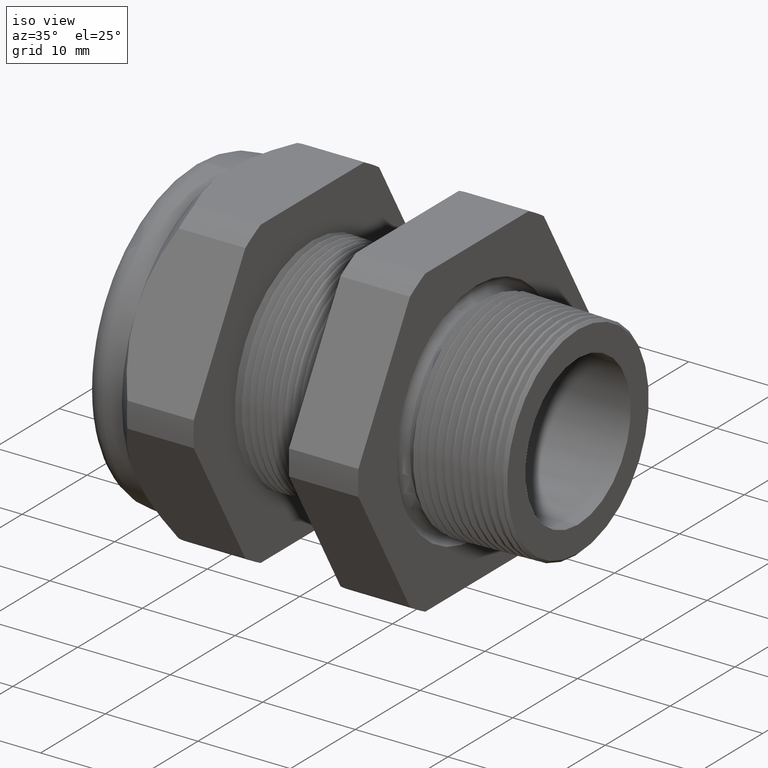
[diagram: clean part render]
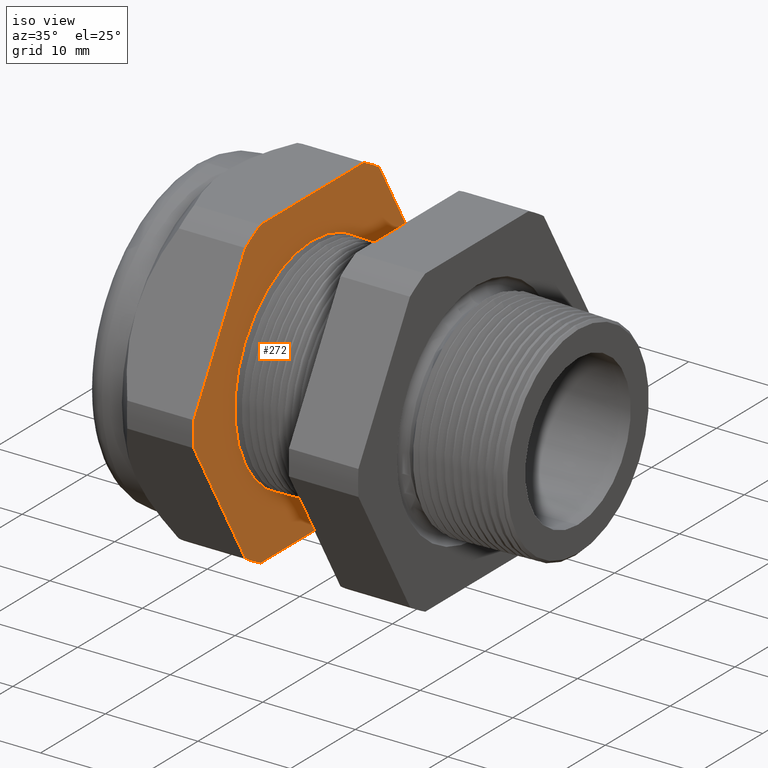
[diagram: same view with one face highlighted and labeled with its STEP entity id]
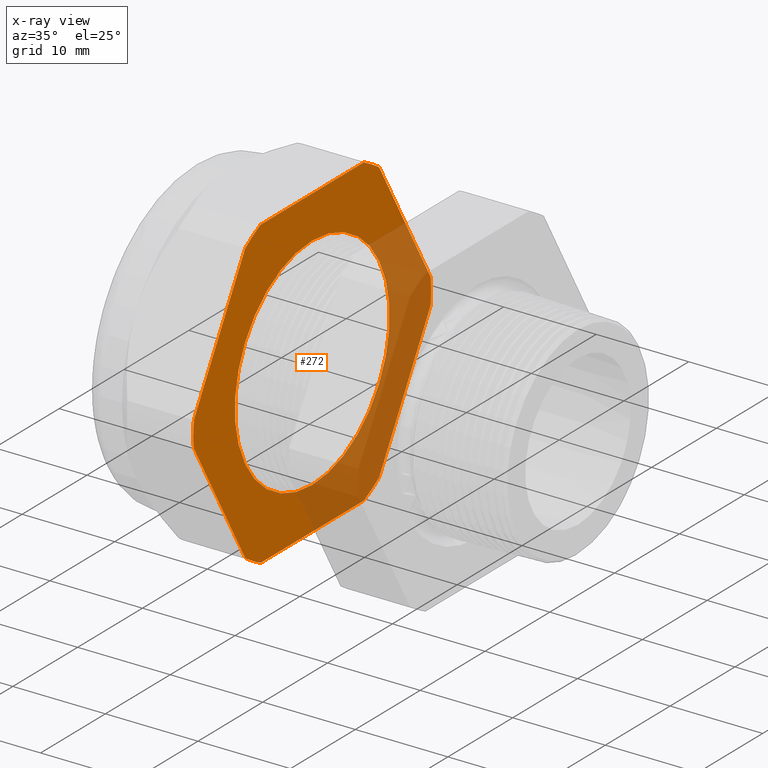
[diagram: x-ray of the same camera — body ghosted, the highlighted face saturated]
A machine part, iso view. The second image highlights one B-rep face of the part: STEP entity #272.
The next image is the same camera in x-ray: the body ghosted, the highlighted face saturated — about 36% of this face is hidden behind the body in this view.
In plain terms, the highlighted planar face has unit normal (1, 0, 0).
Its self-contained STEP definition (entity closure, byte-faithful):
#229 = EDGE_LOOP ( 'NONE', ( #481, #1018 ) ) ;
#272 = ADVANCED_FACE ( 'NONE', ( #1336, #1329 ), #1328, .T. ) ;
#304 = EDGE_CURVE ( 'NONE', #380, #311, #1406, .T. ) ;
#311 = VERTEX_POINT ( 'NONE', #1386 ) ;
#320 = VERTEX_POINT ( 'NONE', #1426 ) ;
#343 = VERTEX_POINT ( 'NONE', #1516 ) ;
#351 = EDGE_CURVE ( 'NONE', #374, #362, #1503, .T. ) ;
#356 = VERTEX_POINT ( 'NONE', #1487 ) ;
#362 = VERTEX_POINT ( 'NONE', #1546 ) ;
#370 = EDGE_CURVE ( 'NONE', #362, #380, #1533, .T. ) ;
#374 = VERTEX_POINT ( 'NONE', #1574 ) ;
#375 = EDGE_CURVE ( 'NONE', #311, #320, #1573, .T. ) ;
#380 = VERTEX_POINT ( 'NONE', #1559 ) ;
#386 = EDGE_CURVE ( 'NONE', #459, #394, #1556, .T. ) ;
#389 = EDGE_CURVE ( 'NONE', #409, #343, #1610, .T. ) ;
#394 = VERTEX_POINT ( 'NONE', #1595 ) ;
#404 = EDGE_CURVE ( 'NONE', #343, #356, #1647, .T. ) ;
#409 = VERTEX_POINT ( 'NONE', #1632 ) ;
#421 = EDGE_CURVE ( 'NONE', #356, #374, #1648, .T. ) ;
#437 = EDGE_CURVE ( 'NONE', #454, #445, #1740, .T. ) ;
#445 = VERTEX_POINT ( 'NONE', #1709 ) ;
#451 = EDGE_CURVE ( 'NONE', #445, #459, #1772, .T. ) ;
#454 = VERTEX_POINT ( 'NONE', #1761 ) ;
#455 = EDGE_CURVE ( 'NONE', #394, #409, #1760, .T. ) ;
#459 = VERTEX_POINT ( 'NONE', #1744 ) ;
#481 = ORIENTED_EDGE ( 'NONE', *, *, #1147, .F. ) ;
#501 = EDGE_CURVE ( 'NONE', #320, #454, #1858, .T. ) ;
#972 = ORIENTED_EDGE ( 'NONE', *, *, #455, .T. ) ;
#1001 = ORIENTED_EDGE ( 'NONE', *, *, #451, .T. ) ;
#1018 = ORIENTED_EDGE ( 'NONE', *, *, #5019, .F. ) ;
#1048 = ORIENTED_EDGE ( 'NONE', *, *, #375, .T. ) ;
#1051 = ORIENTED_EDGE ( 'NONE', *, *, #501, .T. ) ;
#1067 = ORIENTED_EDGE ( 'NONE', *, *, #437, .T. ) ;
#1120 = EDGE_LOOP ( 'NONE', ( #1048, #1051, #1067, #1001, #1155, #972, #1181, #1345, #1346, #1356, #1359, #1367 ) ) ;
#1147 = EDGE_CURVE ( 'NONE', #5020, #5021, #2601, .T. ) ;
#1155 = ORIENTED_EDGE ( 'NONE', *, *, #386, .T. ) ;
#1181 = ORIENTED_EDGE ( 'NONE', *, *, #389, .T. ) ;
#1324 = DIRECTION ( 'NONE',  ( 0.0000000000000000000, 0.0000000000000000000, -1.000000000000000000 ) ) ;
#1325 = DIRECTION ( 'NONE',  ( 1.000000000000000000, 0.0000000000000000000, 0.0000000000000000000 ) ) ;
#1326 = CARTESIAN_POINT ( 'NONE',  ( -1.010314960629921100, 0.4699999999999999700, 0.0000000000000000000 ) ) ;
#1327 = AXIS2_PLACEMENT_3D ( 'NONE', #1326, #1325, #1324 ) ;
#1328 = PLANE ( 'NONE',  #1327 ) ;
#1329 = FACE_OUTER_BOUND ( 'NONE', #1120, .T. ) ;
#1336 = FACE_BOUND ( 'NONE', #229, .T. ) ;
#1344 = CARTESIAN_POINT ( 'NONE',  ( -1.010314960629921100, 0.0000000000000000000, 0.0000000000000000000 ) ) ;
#1345 = ORIENTED_EDGE ( 'NONE', *, *, #404, .T. ) ;
#1346 = ORIENTED_EDGE ( 'NONE', *, *, #421, .T. ) ;
#1356 = ORIENTED_EDGE ( 'NONE', *, *, #351, .T. ) ;
#1359 = ORIENTED_EDGE ( 'NONE', *, *, #370, .T. ) ;
#1367 = ORIENTED_EDGE ( 'NONE', *, *, #304, .T. ) ;
#1386 = CARTESIAN_POINT ( 'NONE',  ( -1.010314960629921100, 0.4063420493440886800, -0.5961949252843790100 ) ) ;
#1403 = DIRECTION ( 'NONE',  ( 0.0000000000000000000, 0.0000000000000000000, -1.000000000000000000 ) ) ;
#1404 = DIRECTION ( 'NONE',  ( 1.000000000000000000, 0.0000000000000000000, 0.0000000000000000000 ) ) ;
#1405 = AXIS2_PLACEMENT_3D ( 'NONE', #1344, #1404, #1403 ) ;
#1406 = CIRCLE ( 'NONE', #1405, 0.7215000000000000300 ) ;
#1426 = CARTESIAN_POINT ( 'NONE',  ( -1.010314960629921100, 0.7194909755756818700, -0.05380507471562089000 ) ) ;
#1487 = CARTESIAN_POINT ( 'NONE',  ( -1.010314960629921100, -0.7194909755756819800, -0.05380507471562082100 ) ) ;
#1499 = DIRECTION ( 'NONE',  ( 0.0000000000000000000, 0.0000000000000000000, -1.000000000000000000 ) ) ;
#1500 = DIRECTION ( 'NONE',  ( 1.000000000000000000, 0.0000000000000000000, 0.0000000000000000000 ) ) ;
#1501 = CARTESIAN_POINT ( 'NONE',  ( -1.010314960629921100, 0.0000000000000000000, 0.0000000000000000000 ) ) ;
#1502 = AXIS2_PLACEMENT_3D ( 'NONE', #1501, #1500, #1499 ) ;
#1503 = CIRCLE ( 'NONE', #1502, 0.7215000000000000300 ) ;
#1516 = CARTESIAN_POINT ( 'NONE',  ( -1.010314960629921100, -0.7194909755756819800, 0.05380507471562025900 ) ) ;
#1530 = DIRECTION ( 'NONE',  ( 0.0000000000000000000, 1.000000000000000000, 0.0000000000000000000 ) ) ;
#1531 = VECTOR ( 'NONE', #1530, 39.37007874015748100 ) ;
#1532 = CARTESIAN_POINT ( 'NONE',  ( -1.010314960629921100, 0.4699999999999999700, -0.6500000000000001300 ) ) ;
#1533 = LINE ( 'NONE', #1532, #1531 ) ;
#1546 = CARTESIAN_POINT ( 'NONE',  ( -1.010314960629921100, -0.3131489262315934100, -0.6500000000000001300 ) ) ;
#1553 = VECTOR ( 'NONE', #1611, 39.37007874015748100 ) ;
#1554 = CARTESIAN_POINT ( 'NONE',  ( -1.010314960629921100, 0.4699999999999999700, 0.6499999999999999100 ) ) ;
#1556 = LINE ( 'NONE', #1554, #1553 ) ;
#1559 = CARTESIAN_POINT ( 'NONE',  ( -1.010314960629921100, 0.3131489262315934100, -0.6500000000000001300 ) ) ;
#1570 = DIRECTION ( 'NONE',  ( 0.0000000000000000000, 0.4999999999999996100, 0.8660254037844388200 ) ) ;
#1571 = VECTOR ( 'NONE', #1570, 39.37007874015748900 ) ;
#1572 = CARTESIAN_POINT ( 'NONE',  ( -1.010314960629921100, 0.6804165124598852100, -0.1214840301106568700 ) ) ;
#1573 = LINE ( 'NONE', #1572, #1571 ) ;
#1574 = CARTESIAN_POINT ( 'NONE',  ( -1.010314960629921100, -0.4063420493440881300, -0.5961949252843793400 ) ) ;
#1586 = CARTESIAN_POINT ( 'NONE',  ( -1.010314960629921100, 0.0000000000000000000, 0.0000000000000000000 ) ) ;
#1595 = CARTESIAN_POINT ( 'NONE',  ( -1.010314960629921100, -0.3131489262315937400, 0.6500000000000000200 ) ) ;
#1606 = DIRECTION ( 'NONE',  ( 0.0000000000000000000, -0.4999999999999995600, -0.8660254037844388200 ) ) ;
#1608 = VECTOR ( 'NONE', #1606, 39.37007874015748900 ) ;
#1609 = CARTESIAN_POINT ( 'NONE',  ( -1.010314960629921100, -0.4454165124598855100, 0.5285159698893426800 ) ) ;
#1610 = LINE ( 'NONE', #1609, #1608 ) ;
#1611 = DIRECTION ( 'NONE',  ( 0.0000000000000000000, -1.000000000000000000, 0.0000000000000000000 ) ) ;
#1632 = CARTESIAN_POINT ( 'NONE',  ( -1.010314960629921100, -0.4063420493440885700, 0.5961949252843791200 ) ) ;
#1644 = DIRECTION ( 'NONE',  ( 0.0000000000000000000, 0.0000000000000000000, -1.000000000000000000 ) ) ;
#1645 = DIRECTION ( 'NONE',  ( 1.000000000000000000, 0.0000000000000000000, 0.0000000000000000000 ) ) ;
#1646 = AXIS2_PLACEMENT_3D ( 'NONE', #1586, #1645, #1644 ) ;
#1647 = CIRCLE ( 'NONE', #1646, 0.7215000000000000300 ) ;
#1648 = LINE ( 'NONE', #1657, #1656 ) ;
#1655 = DIRECTION ( 'NONE',  ( 0.0000000000000000000, 0.5000000000000001100, -0.8660254037844386000 ) ) ;
#1656 = VECTOR ( 'NONE', #1655, 39.37007874015748100 ) ;
#1657 = CARTESIAN_POINT ( 'NONE',  ( -1.010314960629921100, -0.4454165124598852300, -0.5285159698893432400 ) ) ;
#1709 = CARTESIAN_POINT ( 'NONE',  ( -1.010314960629921100, 0.4063420493440890700, 0.5961949252843787800 ) ) ;
#1730 = DIRECTION ( 'NONE',  ( 0.0000000000000000000, -0.4999999999999998900, 0.8660254037844386000 ) ) ;
#1731 = VECTOR ( 'NONE', #1730, 39.37007874015748100 ) ;
#1732 = CARTESIAN_POINT ( 'NONE',  ( -1.010314960629921100, 0.6804165124598855500, 0.1214840301106571000 ) ) ;
#1740 = LINE ( 'NONE', #1732, #1731 ) ;
#1744 = CARTESIAN_POINT ( 'NONE',  ( -1.010314960629921100, 0.3131489262315937900, 0.6499999999999999100 ) ) ;
#1756 = DIRECTION ( 'NONE',  ( 0.0000000000000000000, 0.0000000000000000000, -1.000000000000000000 ) ) ;
#1757 = DIRECTION ( 'NONE',  ( 1.000000000000000000, 0.0000000000000000000, 0.0000000000000000000 ) ) ;
#1758 = CARTESIAN_POINT ( 'NONE',  ( -1.010314960629921100, 0.0000000000000000000, 0.0000000000000000000 ) ) ;
#1759 = AXIS2_PLACEMENT_3D ( 'NONE', #1758, #1757, #1756 ) ;
#1760 = CIRCLE ( 'NONE', #1759, 0.7215000000000000300 ) ;
#1761 = CARTESIAN_POINT ( 'NONE',  ( -1.010314960629921100, 0.7194909755756817600, 0.05380507471562173000 ) ) ;
#1768 = DIRECTION ( 'NONE',  ( 0.0000000000000000000, 0.0000000000000000000, -1.000000000000000000 ) ) ;
#1769 = DIRECTION ( 'NONE',  ( 1.000000000000000000, 0.0000000000000000000, 0.0000000000000000000 ) ) ;
#1770 = CARTESIAN_POINT ( 'NONE',  ( -1.010314960629921100, 0.0000000000000000000, 0.0000000000000000000 ) ) ;
#1771 = AXIS2_PLACEMENT_3D ( 'NONE', #1770, #1769, #1768 ) ;
#1772 = CIRCLE ( 'NONE', #1771, 0.7215000000000000300 ) ;
#1854 = DIRECTION ( 'NONE',  ( 0.0000000000000000000, 0.0000000000000000000, -1.000000000000000000 ) ) ;
#1855 = DIRECTION ( 'NONE',  ( 1.000000000000000000, 0.0000000000000000000, 0.0000000000000000000 ) ) ;
#1856 = CARTESIAN_POINT ( 'NONE',  ( -1.010314960629921100, 0.0000000000000000000, 0.0000000000000000000 ) ) ;
#1857 = AXIS2_PLACEMENT_3D ( 'NONE', #1856, #1855, #1854 ) ;
#1858 = CIRCLE ( 'NONE', #1857, 0.7214999999999999200 ) ;
#2597 = DIRECTION ( 'NONE',  ( 0.0000000000000000000, 0.0000000000000000000, -1.000000000000000000 ) ) ;
#2598 = DIRECTION ( 'NONE',  ( 1.000000000000000000, 0.0000000000000000000, 0.0000000000000000000 ) ) ;
#2599 = CARTESIAN_POINT ( 'NONE',  ( -1.010314960629921100, 0.0000000000000000000, 0.0000000000000000000 ) ) ;
#2600 = AXIS2_PLACEMENT_3D ( 'NONE', #2599, #2598, #2597 ) ;
#2601 = CIRCLE ( 'NONE', #2600, 0.4699999999999999700 ) ;
#3415 = CARTESIAN_POINT ( 'NONE',  ( -1.010314960629921100, 5.755839955992559700E-017, -0.4699999999999999700 ) ) ;
#3416 = CARTESIAN_POINT ( 'NONE',  ( -1.010314960629921100, 0.0000000000000000000, 0.4699999999999999700 ) ) ;
#3417 = DIRECTION ( 'NONE',  ( 0.0000000000000000000, 0.0000000000000000000, -1.000000000000000000 ) ) ;
#3418 = DIRECTION ( 'NONE',  ( 1.000000000000000000, 0.0000000000000000000, 0.0000000000000000000 ) ) ;
#3419 = CARTESIAN_POINT ( 'NONE',  ( -1.010314960629921100, 0.0000000000000000000, 0.0000000000000000000 ) ) ;
#3420 = AXIS2_PLACEMENT_3D ( 'NONE', #3419, #3418, #3417 ) ;
#3421 = CIRCLE ( 'NONE', #3420, 0.4699999999999999700 ) ;
#5019 = EDGE_CURVE ( 'NONE', #5021, #5020, #3421, .T. ) ;
#5020 = VERTEX_POINT ( 'NONE', #3416 ) ;
#5021 = VERTEX_POINT ( 'NONE', #3415 ) ;